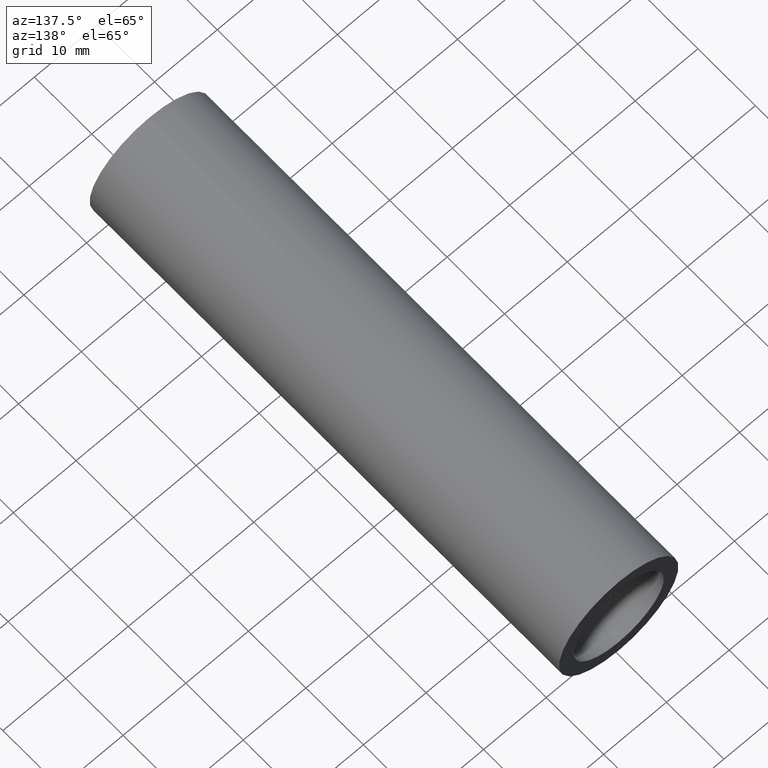
[diagram: clean part render]
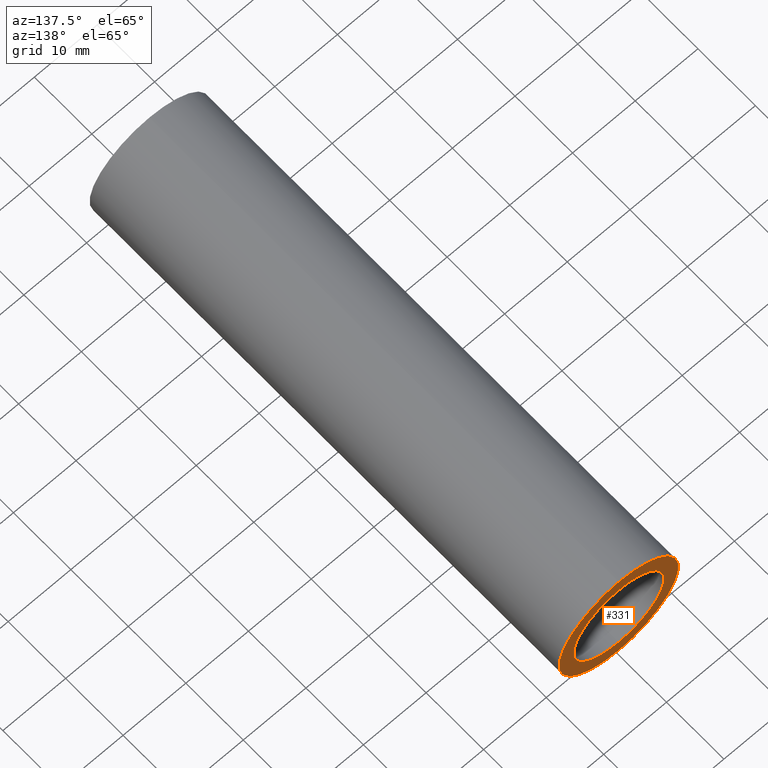
[diagram: same view with one face highlighted and labeled with its STEP entity id]
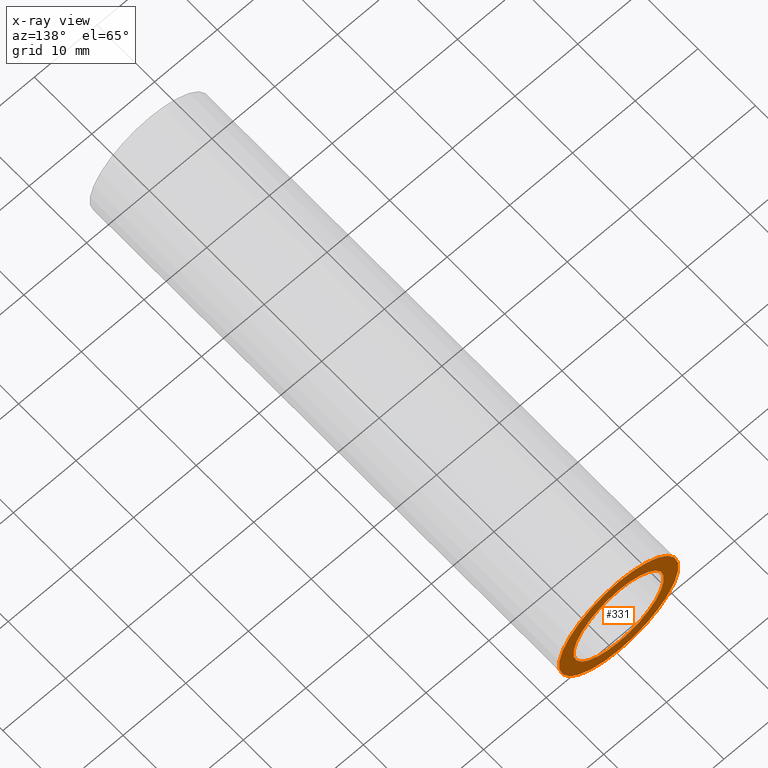
[diagram: x-ray of the same camera — body ghosted, the highlighted face saturated]
A machine part, auxiliary view. The second image highlights one B-rep face of the part: STEP entity #331.
The next image is the same camera in x-ray: the body ghosted, the highlighted face saturated — about 0% of this face is hidden behind the body in this view.
In plain terms, the highlighted planar face has unit normal (0, -1, 0).
Its self-contained STEP definition (entity closure, byte-faithful):
#3 = AXIS2_PLACEMENT_3D ( 'NONE', #559, #416, #271 ) ;
#9 = AXIS2_PLACEMENT_3D ( 'NONE', #100, #54, #152 ) ;
#54 = DIRECTION ( 'NONE',  ( -0.0000000000000000000, 1.000000000000000000, -0.0000000000000000000 ) ) ;
#71 = CARTESIAN_POINT ( 'NONE',  ( 1.166476076187856400E-015, 81.69999999999998900, -9.525000000000019900 ) ) ;
#77 = EDGE_CURVE ( 'NONE', #572, #400, #190, .T. ) ;
#81 = CIRCLE ( 'NONE', #9, 9.525000000000019900 ) ;
#100 = CARTESIAN_POINT ( 'NONE',  ( 0.0000000000000000000, 81.69999999999998900, 0.0000000000000000000 ) ) ;
#101 = DIRECTION ( 'NONE',  ( 0.0000000000000000000, 0.0000000000000000000, 1.000000000000000000 ) ) ;
#120 = EDGE_CURVE ( 'NONE', #239, #346, #81, .T. ) ;
#129 = PLANE ( 'NONE',  #3 ) ;
#139 = DIRECTION ( 'NONE',  ( -0.0000000000000000000, 1.000000000000000000, -0.0000000000000000000 ) ) ;
#152 = DIRECTION ( 'NONE',  ( 0.0000000000000000000, 0.0000000000000000000, 1.000000000000000000 ) ) ;
#156 = ORIENTED_EDGE ( 'NONE', *, *, #219, .F. ) ;
#190 = CIRCLE ( 'NONE', #444, 7.200000000000009900 ) ;
#207 = CARTESIAN_POINT ( 'NONE',  ( 0.0000000000000000000, 81.69999999999997400, 0.0000000000000000000 ) ) ;
#212 = CARTESIAN_POINT ( 'NONE',  ( 0.0000000000000000000, 81.69999999999997400, 0.0000000000000000000 ) ) ;
#219 = EDGE_CURVE ( 'NONE', #400, #572, #482, .T. ) ;
#239 = VERTEX_POINT ( 'NONE', #71 ) ;
#252 = AXIS2_PLACEMENT_3D ( 'NONE', #212, #550, #309 ) ;
#263 = CARTESIAN_POINT ( 'NONE',  ( 0.0000000000000000000, 81.69999999999998900, 9.525000000000019900 ) ) ;
#271 = DIRECTION ( 'NONE',  ( 0.0000000000000000000, -0.0000000000000000000, -1.000000000000000000 ) ) ;
#285 = AXIS2_PLACEMENT_3D ( 'NONE', #472, #139, #319 ) ;
#309 = DIRECTION ( 'NONE',  ( 0.0000000000000000000, 0.0000000000000000000, 1.000000000000000000 ) ) ;
#319 = DIRECTION ( 'NONE',  ( 0.0000000000000000000, 0.0000000000000000000, 1.000000000000000000 ) ) ;
#331 = ADVANCED_FACE ( 'NONE', ( #512, #610 ), #129, .F. ) ;
#344 = CIRCLE ( 'NONE', #285, 9.525000000000019900 ) ;
#346 = VERTEX_POINT ( 'NONE', #263 ) ;
#400 = VERTEX_POINT ( 'NONE', #426 ) ;
#416 = DIRECTION ( 'NONE',  ( 0.0000000000000000000, -1.000000000000000000, 0.0000000000000000000 ) ) ;
#426 = CARTESIAN_POINT ( 'NONE',  ( 8.817456953860955100E-016, 81.69999999999997400, -7.200000000000009900 ) ) ;
#427 = EDGE_CURVE ( 'NONE', #346, #239, #344, .T. ) ;
#434 = EDGE_LOOP ( 'NONE', ( #527, #533 ) ) ;
#444 = AXIS2_PLACEMENT_3D ( 'NONE', #207, #538, #101 ) ;
#472 = CARTESIAN_POINT ( 'NONE',  ( 0.0000000000000000000, 81.69999999999998900, 0.0000000000000000000 ) ) ;
#482 = CIRCLE ( 'NONE', #252, 7.200000000000009900 ) ;
#491 = CARTESIAN_POINT ( 'NONE',  ( 0.0000000000000000000, 81.69999999999997400, 7.200000000000009900 ) ) ;
#506 = EDGE_LOOP ( 'NONE', ( #592, #156 ) ) ;
#512 = FACE_BOUND ( 'NONE', #506, .T. ) ;
#527 = ORIENTED_EDGE ( 'NONE', *, *, #427, .T. ) ;
#533 = ORIENTED_EDGE ( 'NONE', *, *, #120, .T. ) ;
#538 = DIRECTION ( 'NONE',  ( -0.0000000000000000000, 1.000000000000000000, -0.0000000000000000000 ) ) ;
#550 = DIRECTION ( 'NONE',  ( -0.0000000000000000000, 1.000000000000000000, -0.0000000000000000000 ) ) ;
#559 = CARTESIAN_POINT ( 'NONE',  ( 7.200000000000009900, 81.69999999999998900, 0.0000000000000000000 ) ) ;
#572 = VERTEX_POINT ( 'NONE', #491 ) ;
#592 = ORIENTED_EDGE ( 'NONE', *, *, #77, .F. ) ;
#610 = FACE_OUTER_BOUND ( 'NONE', #434, .T. ) ;